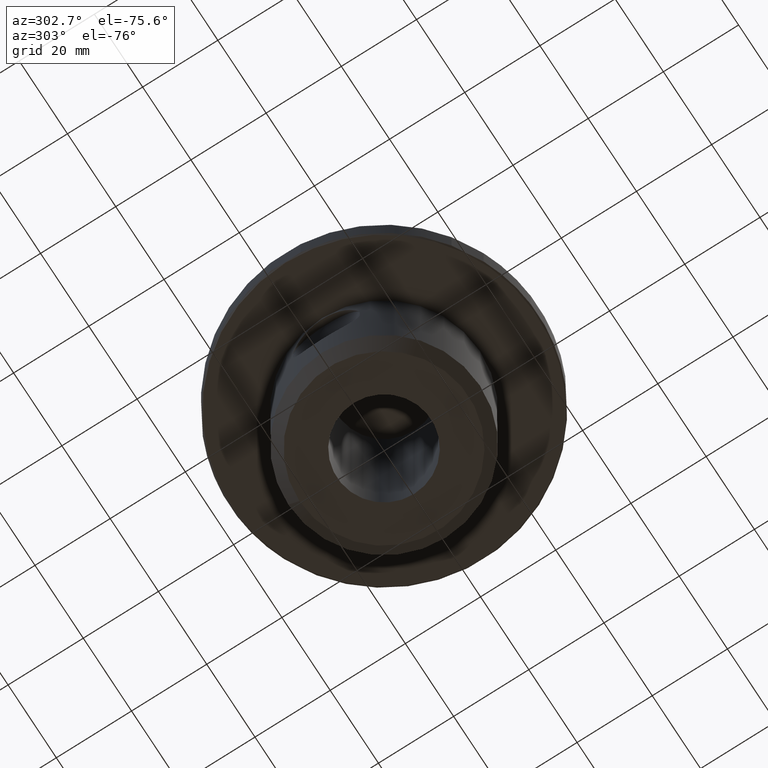
[diagram: clean part render]
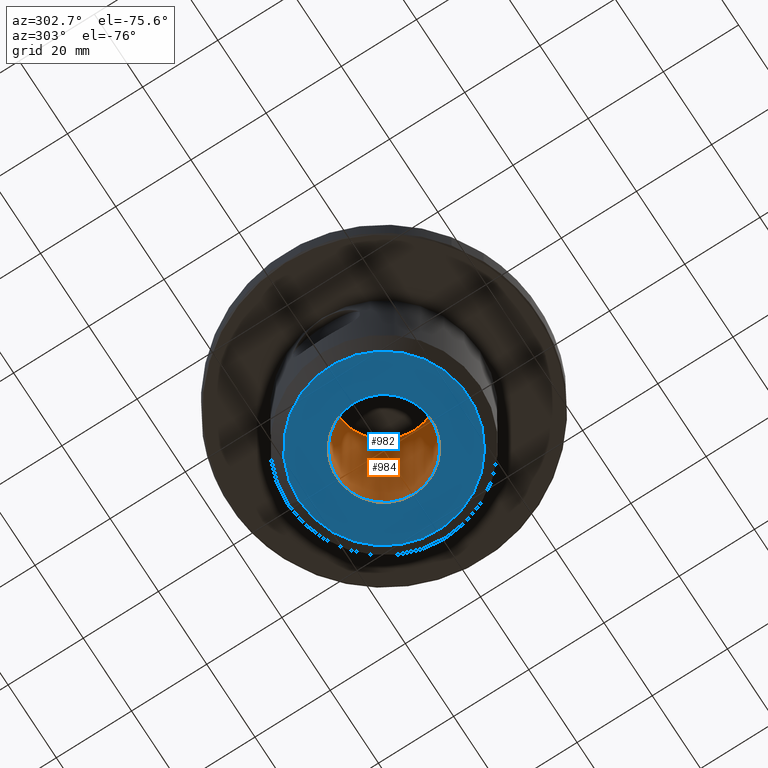
[diagram: same view with the hole feature highlighted: cylindrical wall and planar end face, labeled with their STEP entity ids]
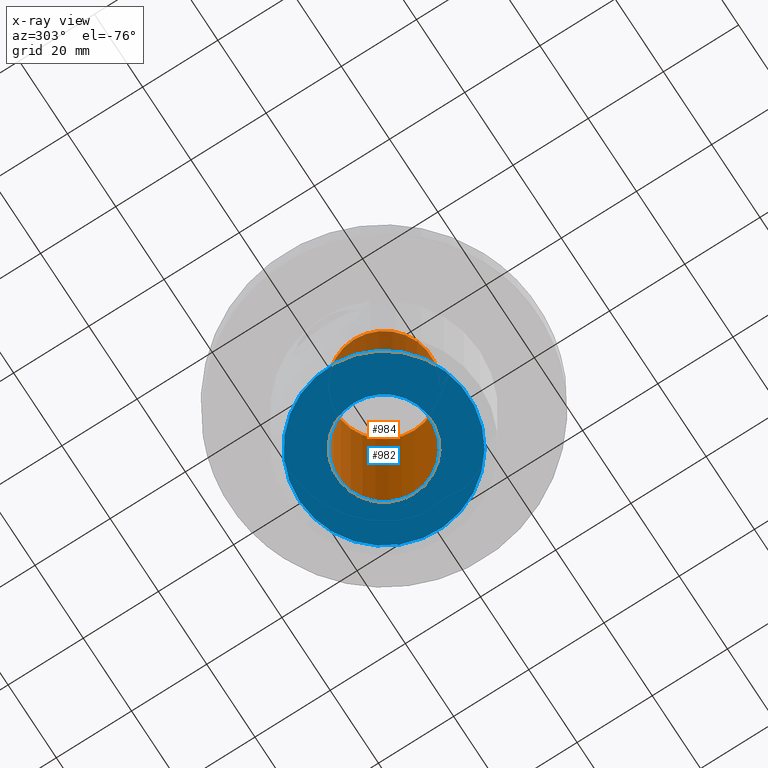
[diagram: x-ray of the same camera — body ghosted, the hole faces saturated]
A machine part, auxiliary view. The highlighted faces form one hole feature of diameter 25 mm: the cylindrical wall (entity #984, orange) and its adjacent planar end face (entity #982, blue) — they share a circular edge in the B-rep.
The next image is the same camera in x-ray (body ghosted, the hole faces saturated) — the bore reads through the body.
Wall:
#106=CIRCLE('',#1112,12.5);
#108=CIRCLE('',#1116,12.5);
#416=ORIENTED_EDGE('',*,*,#561,.T.);
#417=ORIENTED_EDGE('',*,*,#559,.F.);
#559=EDGE_CURVE('',#659,#659,#106,.T.);
#561=EDGE_CURVE('',#661,#661,#108,.T.);
#659=VERTEX_POINT('',#1863);
#661=VERTEX_POINT('',#1869);
#792=EDGE_LOOP('',(#416));
#793=EDGE_LOOP('',(#417));
#887=FACE_BOUND('',#792,.T.);
#888=FACE_BOUND('',#793,.T.);
#921=CYLINDRICAL_SURFACE('',#1115,12.5);
#984=ADVANCED_FACE('',(#887,#888),#921,.F.);
#1112=AXIS2_PLACEMENT_3D('',#1862,#1374,#1375);
#1115=AXIS2_PLACEMENT_3D('',#1867,#1380,#1381);
#1116=AXIS2_PLACEMENT_3D('',#1868,#1382,#1383);
#1374=DIRECTION('',(0.,0.,1.));
#1375=DIRECTION('',(-1.,0.,0.));
#1380=DIRECTION('',(0.,0.,-1.));
#1381=DIRECTION('',(-1.,0.,0.));
#1382=DIRECTION('',(0.,0.,1.));
#1383=DIRECTION('',(-1.,0.,0.));
#1862=CARTESIAN_POINT('',(0.,0.,-43.));
#1863=CARTESIAN_POINT('',(-12.5,0.,-43.));
#1867=CARTESIAN_POINT('',(0.,0.,14.));
#1868=CARTESIAN_POINT('',(0.,0.,14.));
#1869=CARTESIAN_POINT('',(-12.5,0.,14.));
End face:
#33=PLANE('',#1111);
#106=CIRCLE('',#1112,12.5);
#107=CIRCLE('',#1113,22.5);
#412=ORIENTED_EDGE('',*,*,#559,.T.);
#413=ORIENTED_EDGE('',*,*,#560,.T.);
#559=EDGE_CURVE('',#659,#659,#106,.T.);
#560=EDGE_CURVE('',#660,#660,#107,.T.);
#659=VERTEX_POINT('',#1863);
#660=VERTEX_POINT('',#1865);
#788=EDGE_LOOP('',(#412));
#789=EDGE_LOOP('',(#413));
#883=FACE_BOUND('',#788,.T.);
#884=FACE_BOUND('',#789,.T.);
#982=ADVANCED_FACE('',(#883,#884),#33,.T.);
#1111=AXIS2_PLACEMENT_3D('',#1861,#1372,#1373);
#1112=AXIS2_PLACEMENT_3D('',#1862,#1374,#1375);
#1113=AXIS2_PLACEMENT_3D('',#1864,#1376,#1377);
#1372=DIRECTION('',(0.,0.,-1.));
#1373=DIRECTION('',(0.,1.,0.));
#1374=DIRECTION('',(0.,0.,1.));
#1375=DIRECTION('',(-1.,0.,0.));
#1376=DIRECTION('',(0.,0.,-1.));
#1377=DIRECTION('',(0.,1.,0.));
#1861=CARTESIAN_POINT('',(0.,22.5,-43.));
#1862=CARTESIAN_POINT('',(0.,0.,-43.));
#1863=CARTESIAN_POINT('',(-12.5,0.,-43.));
#1864=CARTESIAN_POINT('',(0.,0.,-43.));
#1865=CARTESIAN_POINT('',(0.,22.5,-43.));